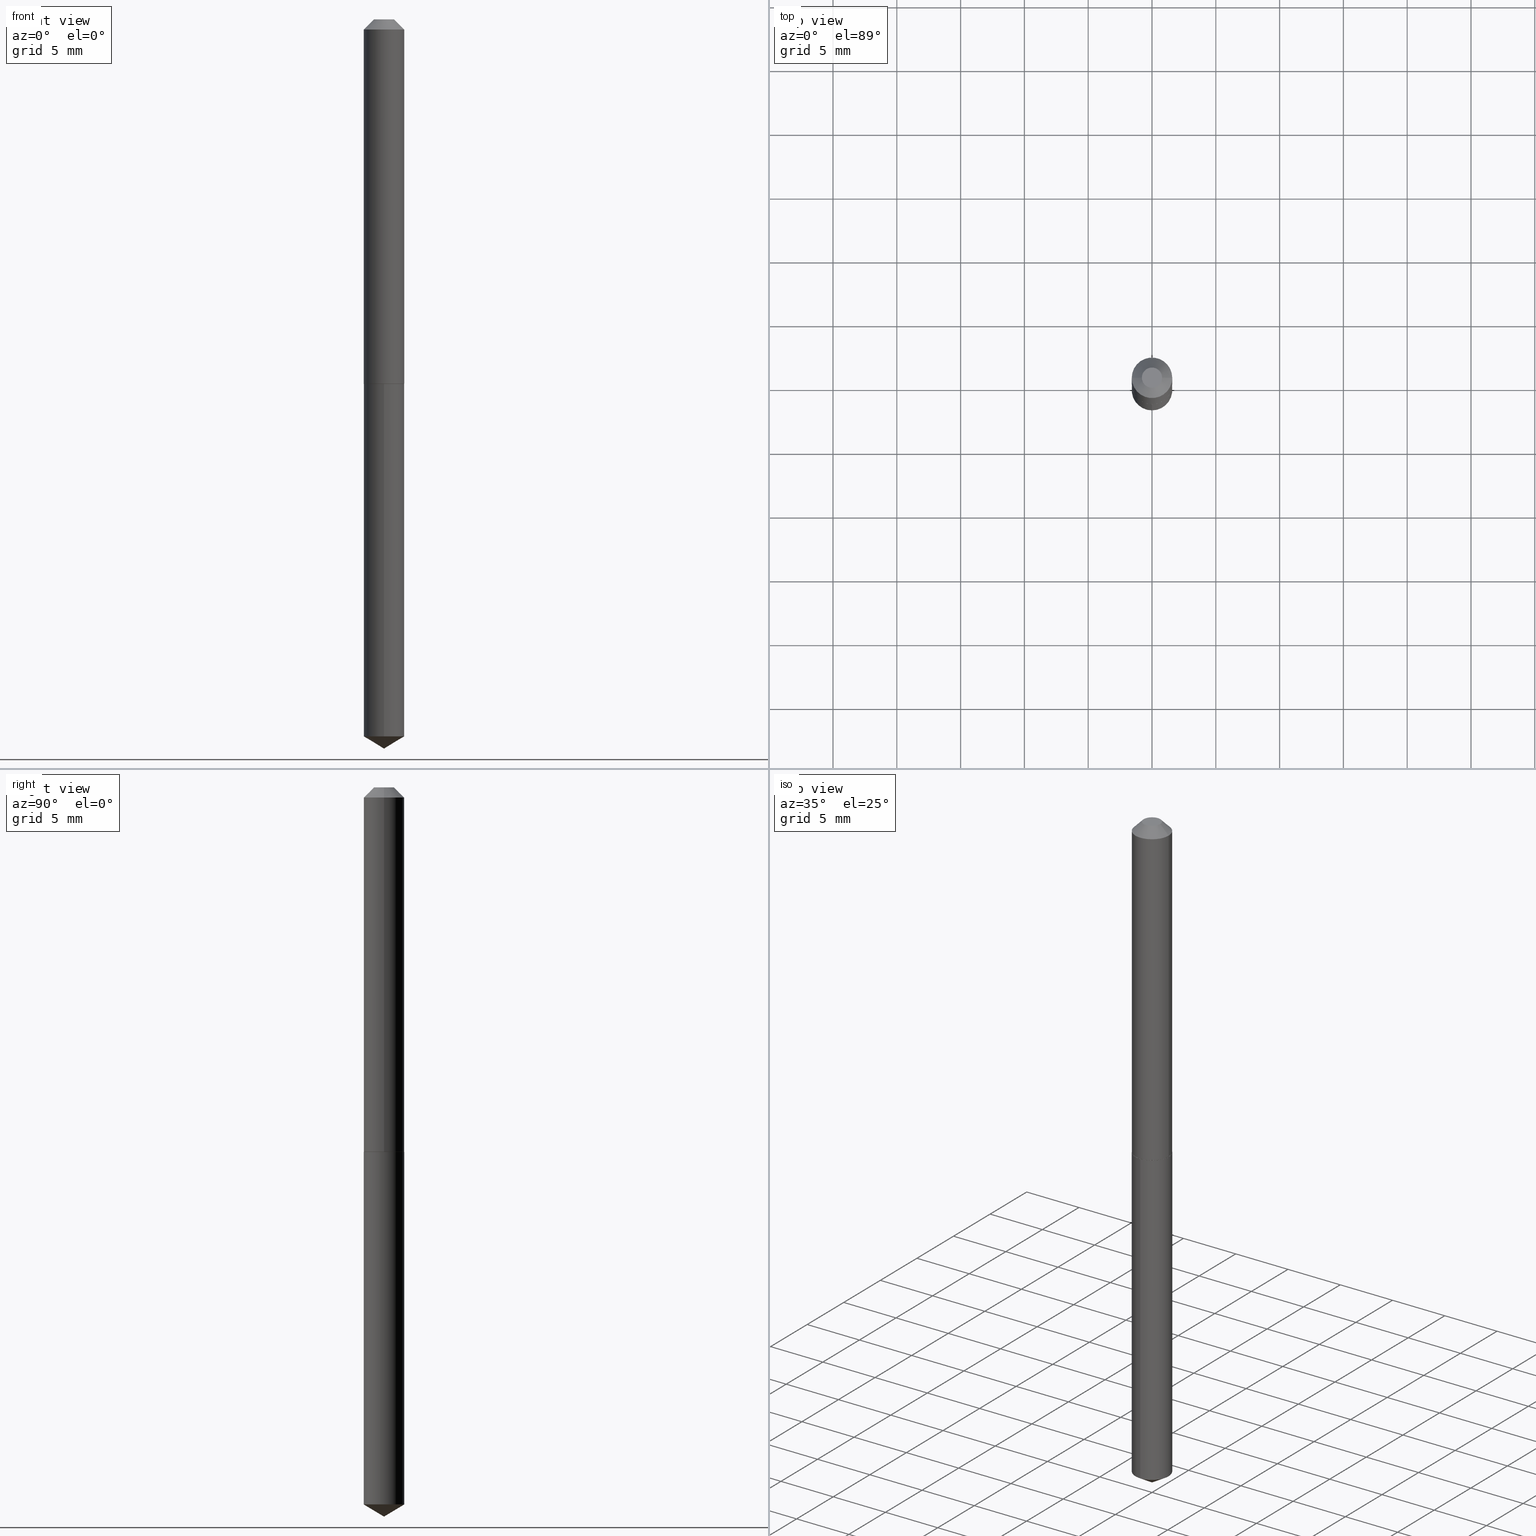
[diagram: canonical four-view strip — front | top / right | iso, engineering-drawing reading convention]
A machine part, canonical four-view strip (front | top / right | iso — engineering-drawing reading convention). The complete STEP part file that produces these views, byte-faithful:
ISO-10303-21;
HEADER;
FILE_DESCRIPTION (( 'STEP AP203' ),
    '1' );
FILE_NAME ('57133.STEP',
    '2024-04-22T22:41:10',
    ( '' ),
    ( '' ),
    'SwSTEP 2.0',
    'SolidWorks 2023',
    '' );
FILE_SCHEMA (( 'CONFIG_CONTROL_DESIGN' ));
ENDSEC;

DATA;
#1 = DIRECTION ( 'NONE',  ( -2.445476234488650403E-29, 3.491470701089721199E-15, 1.000000000000000000 ) ) ;
#2 = EDGE_CURVE ( 'NONE', #144, #344, #35, .T. ) ;
#3 = CARTESIAN_POINT ( 'NONE',  ( 2.749929672555185870E-29, -3.926170765529116932E-15, -1.124500000000000055 ) ) ;
#4 = LINE ( 'NONE', #69, #354 ) ;
#5 = AXIS2_PLACEMENT_3D ( 'NONE', #275, #339, #337 ) ;
#6 = CC_DESIGN_APPROVAL ( #88, ( #387 ) ) ;
#7 = DIRECTION ( 'NONE',  ( -6.982962677686266711E-15, -1.000000000000000000, 3.468864327941578437E-15 ) ) ;
#8 = CALENDAR_DATE ( 2024, 22, 4 ) ;
#9 = DIRECTION ( 'NONE',  ( 1.000000000000000000, -6.982962677686265922E-15, 4.876176775795935793E-29 ) ) ;
#10 = COORDINATED_UNIVERSAL_TIME_OFFSET ( 5, 0, .BEHIND. ) ;
#11 = VECTOR ( 'NONE', #361, 39.37007874015748143 ) ;
#12 = ORIENTED_EDGE ( 'NONE', *, *, #268, .F. ) ;
#13 = PERSON_AND_ORGANIZATION_ROLE ( 'classification_officer' ) ;
#14 = ORIENTED_EDGE ( 'NONE', *, *, #235, .F. ) ;
#15 = COORDINATED_UNIVERSAL_TIME_OFFSET ( 5, 0, .BEHIND. ) ;
#16 = EDGE_CURVE ( 'NONE', #180, #338, #169, .T. ) ;
#17 = ORIENTED_EDGE ( 'NONE', *, *, #360, .T. ) ;
#18 = ORGANIZATION ( 'UNSPECIFIED', 'UNSPECIFIED', '' ) ;
#19 = CARTESIAN_POINT ( 'NONE',  ( 2.749929672555185870E-29, -3.926170765529116932E-15, -1.124500000000000055 ) ) ;
#20 = ORIENTED_EDGE ( 'NONE', *, *, #228, .T. ) ;
#21 = DIRECTION ( 'NONE',  ( 1.000000000000000000, -6.982962677686265133E-15, 0.000000000000000000 ) ) ;
#22 = CALENDAR_DATE ( 2024, 22, 4 ) ;
#23 = DIRECTION ( 'NONE',  ( -1.000000000000000000, 6.982962677686265922E-15, -4.876176775795935793E-29 ) ) ;
#24 = ADVANCED_FACE ( 'NONE', ( #247 ), #253, .T. ) ;
#25 = AXIS2_PLACEMENT_3D ( 'NONE', #137, #46, #321 ) ;
#26 = DIRECTION ( 'NONE',  ( -2.445476234488650403E-29, 3.491470701089721199E-15, 1.000000000000000000 ) ) ;
#27 = DIRECTION ( 'NONE',  ( 6.090539988449787113E-15, 0.8571673007021152202, 0.5150380749100493816 ) ) ;
#28 = VERTEX_POINT ( 'NONE', #161 ) ;
#29 = DIRECTION ( 'NONE',  ( -2.445468806185136597E-29, 3.491481338843145583E-15, 1.000000000000000000 ) ) ;
#30 = CARTESIAN_POINT ( 'NONE',  ( 2.751152406958278671E-29, -3.927916506198539224E-15, -1.125000000000000000 ) ) ;
#31 = AXIS2_PLACEMENT_3D ( 'NONE', #349, #283, #281 ) ;
#32 = CYLINDRICAL_SURFACE ( 'NONE', #336, 0.06250000000000006939 ) ;
#33 = CARTESIAN_POINT ( 'NONE',  ( 7.642090019328602662E-31, -1.091087918388490267E-16, -0.03125000000000020817 ) ) ;
#34 = CARTESIAN_POINT ( 'NONE',  ( 2.751152406958279232E-29, -3.927916506198539224E-15, -1.125000000000000222 ) ) ;
#35 = LINE ( 'NONE', #280, #382 ) ;
#36 = APPROVAL ( #101, 'UNSPECIFIED' ) ;
#37 = FACE_OUTER_BOUND ( 'NONE', #262, .T. ) ;
#38 = CARTESIAN_POINT ( 'NONE',  ( 0.06250000000000013878, -4.362605932884509390E-15, -1.124500000000000055 ) ) ;
#39 = AXIS2_PLACEMENT_3D ( 'NONE', #63, #218, #214 ) ;
#40 = PERSON_AND_ORGANIZATION ( #47, #18 ) ;
#41 = PLANE ( 'NONE',  #25 ) ;
#42 = CC_DESIGN_DATE_AND_TIME_ASSIGNMENT ( #324, #53, ( #387 ) ) ;
#43 =( CONVERSION_BASED_UNIT ( 'INCH', #257 ) LENGTH_UNIT ( ) NAMED_UNIT ( #149 ) );
#44 = AXIS2_PLACEMENT_3D ( 'NONE', #364, #249, #212 ) ;
#45 = ORIENTED_EDGE ( 'NONE', *, *, #183, .F. ) ;
#46 = DIRECTION ( 'NONE',  ( 2.445476234488649843E-29, -3.491470701089721199E-15, -1.000000000000000000 ) ) ;
#47 = PERSON ( 'UNSPECIFIED', 'UNSPECIFIED', 'UNSPECIFIED', ('UNSPECIFIED'), ('UNSPECIFIED'), ('UNSPECIFIED') ) ;
#48 = PRODUCT_DEFINITION ( 'UNKNOWN', '', #152, #231 ) ;
#49 = ORIENTED_EDGE ( 'NONE', *, *, #118, .T. ) ;
#50 = VERTEX_POINT ( 'NONE', #276 ) ;
#51 = ORIENTED_EDGE ( 'NONE', *, *, #95, .T. ) ;
#52 = CONICAL_SURFACE ( 'NONE', #5, 0.06250000000000000000, 0.7853981633974449483 ) ;
#53 = DATE_TIME_ROLE ( 'classification_date' ) ;
#54 = ORIENTED_EDGE ( 'NONE', *, *, #186, .F. ) ;
#55 = EDGE_CURVE ( 'NONE', #141, #82, #390, .T. ) ;
#56 = DATE_AND_TIME ( #22, #65 ) ;
#57 = CARTESIAN_POINT ( 'NONE',  ( 4.440892098501167517E-16, 0.06249999999999229089, -2.212446211310778121 ) ) ;
#58 = AXIS2_PLACEMENT_3D ( 'NONE', #98, #243, #273 ) ;
#59 = VECTOR ( 'NONE', #123, 39.37007874015748143 ) ;
#60 = PRODUCT_RELATED_PRODUCT_CATEGORY ( 'detail', '', ( #122 ) ) ;
#61 = DIRECTION ( 'NONE',  ( 1.000000000000000000, -6.982962677686266711E-15, 0.000000000000000000 ) ) ;
#62 = CARTESIAN_POINT ( 'NONE',  ( 0.000000000000000000, 0.000000000000000000, 0.000000000000000000 ) ) ;
#63 = CARTESIAN_POINT ( 'NONE',  ( 2.751152406958278671E-29, -3.927916506198539224E-15, -1.125000000000000000 ) ) ;
#64 = CC_DESIGN_APPROVAL ( #131, ( #48 ) ) ;
#65 = LOCAL_TIME ( 18, 41, 10.00000000000000000, #86 ) ;
#66 = CLOSED_SHELL ( 'NONE', ( #24, #246, #330, #109, #125, #207, #307, #200 ) ) ;
#67 = DIRECTION ( 'NONE',  ( -6.982962677686265922E-15, -1.000000000000000000, 4.370956789862821150E-15 ) ) ;
#68 = CARTESIAN_POINT ( 'NONE',  ( -0.06250000000000006939, 4.440892098500631092E-16, -3.074334431409319267E-30 ) ) ;
#69 = CARTESIAN_POINT ( 'NONE',  ( 0.06250000000000000000, -5.378899166995697247E-16, -0.03125000000000020817 ) ) ;
#70 = CARTESIAN_POINT ( 'NONE',  ( -0.06250000000000000000, 3.273263755165426674E-16, -0.03125000000000020817 ) ) ;
#71 = EDGE_LOOP ( 'NONE', ( #197, #112, #314, #111 ) ) ;
#72 = EDGE_CURVE ( 'NONE', #115, #28, #328, .T. ) ;
#73 = COORDINATED_UNIVERSAL_TIME_OFFSET ( 5, 0, .BEHIND. ) ;
#74 = APPROVAL_DATE_TIME ( #134, #36 ) ;
#75 = ORIENTED_EDGE ( 'NONE', *, *, #173, .F. ) ;
#76 = CONICAL_SURFACE ( 'NONE', #120, 65.52281426576873002, 1.029744258676656532 ) ;
#77 = AXIS2_PLACEMENT_3D ( 'NONE', #366, #220, #9 ) ;
#78 = APPROVAL_ROLE ( '' ) ;
#79 = ORIENTED_EDGE ( 'NONE', *, *, #118, .F. ) ;
#80 = VERTEX_POINT ( 'NONE', #93 ) ;
#81 = PERSON_AND_ORGANIZATION ( #47, #18 ) ;
#82 = VERTEX_POINT ( 'NONE', #167 ) ;
#83 = VECTOR ( 'NONE', #181, 39.37007874015748143 ) ;
#84 = CARTESIAN_POINT ( 'NONE',  ( 7.642090019328602662E-31, -1.091087918388490267E-16, -0.03125000000000020817 ) ) ;
#85 = APPLICATION_CONTEXT ( 'configuration controlled 3d designs of mechanical parts and assemblies' ) ;
#86 = COORDINATED_UNIVERSAL_TIME_OFFSET ( 5, 0, .BEHIND. ) ;
#87 = CARTESIAN_POINT ( 'NONE',  ( 5.410476273003508359E-29, -7.724703092001141037E-15, -2.212446211310777677 ) ) ;
#88 = APPROVAL ( #237, 'UNSPECIFIED' ) ;
#89 = CARTESIAN_POINT ( 'NONE',  ( 5.502304813916557343E-29, -7.855833012397078448E-15, -2.250000000000000000 ) ) ;
#90 = FACE_OUTER_BOUND ( 'NONE', #138, .T. ) ;
#91 = CARTESIAN_POINT ( 'NONE',  ( -0.03125000000000000000, 2.727719795971193003E-16, 3.061616997851215240E-19 ) ) ;
#92 = CARTESIAN_POINT ( 'NONE',  ( -9.077627873824398313E-28, 1.296036553759306952E-13, 37.12007874015748143 ) ) ;
#93 = CARTESIAN_POINT ( 'NONE',  ( -4.364351673553376324E-16, -0.06250000000000772993, -2.212446211310777233 ) ) ;
#94 = DIRECTION ( 'NONE',  ( 1.000000000000000000, -6.982962677686266711E-15, 0.000000000000000000 ) ) ;
#95 = EDGE_CURVE ( 'NONE', #28, #50, #4, .T. ) ;
#96 = LOCAL_TIME ( 18, 41, 10.00000000000000000, #105 ) ;
#97 = DIRECTION ( 'NONE',  ( -2.445468806185136597E-29, 3.491481338843145583E-15, 1.000000000000000000 ) ) ;
#98 = CARTESIAN_POINT ( 'NONE',  ( -7.487088864773312091E-48, 1.068957861474242724E-33, 3.061616997868381053E-19 ) ) ;
#99 = FACE_OUTER_BOUND ( 'NONE', #261, .T. ) ;
#100 = DIRECTION ( 'NONE',  ( -0.7071067811864388819, 7.493145998869961307E-15, 0.7071067811866561525 ) ) ;
#101 = APPROVAL_STATUS ( 'not_yet_approved' ) ;
#102 = AXIS2_PLACEMENT_3D ( 'NONE', #30, #157, #128 ) ;
#103 = APPROVAL_DATE_TIME ( #168, #131 ) ;
#104 = ORIENTED_EDGE ( 'NONE', *, *, #251, .F. ) ;
#105 = COORDINATED_UNIVERSAL_TIME_OFFSET ( 5, 0, .BEHIND. ) ;
#106 = ORIENTED_EDGE ( 'NONE', *, *, #146, .F. ) ;
#107 =( NAMED_UNIT ( * ) SI_UNIT ( $, .STERADIAN. ) SOLID_ANGLE_UNIT ( ) );
#108 = MANIFOLD_SOLID_BREP ( 'Body-Move/Copy2[1]', #153 ) ;
#109 = ADVANCED_FACE ( 'NONE', ( #132 ), #250, .F. ) ;
#110 = AXIS2_PLACEMENT_3D ( 'NONE', #34, #334, #165 ) ;
#111 = ORIENTED_EDGE ( 'NONE', *, *, #325, .F. ) ;
#112 = ORIENTED_EDGE ( 'NONE', *, *, #183, .T. ) ;
#113 = DIRECTION ( 'NONE',  ( -2.445476234488650403E-29, 3.491470701089721199E-15, 1.000000000000000000 ) ) ;
#114 = CC_DESIGN_DATE_AND_TIME_ASSIGNMENT ( #133, #367, ( #48 ) ) ;
#115 = VERTEX_POINT ( 'NONE', #91 ) ;
#116 = PLANE ( 'NONE',  #172 ) ;
#117 = ORIENTED_EDGE ( 'NONE', *, *, #376, .T. ) ;
#118 = EDGE_CURVE ( 'NONE', #82, #338, #277, .T. ) ;
#119 = ORIENTED_EDGE ( 'NONE', *, *, #346, .T. ) ;
#120 = AXIS2_PLACEMENT_3D ( 'NONE', #92, #1, #7 ) ;
#121 = DIRECTION ( 'NONE',  ( 1.000000000000000000, -6.982962677686262766E-15, 0.000000000000000000 ) ) ;
#122 = PRODUCT ( '57133', '57133', '', ( #194 ) ) ;
#123 = DIRECTION ( 'NONE',  ( -2.445476234488650123E-29, 3.491470701089721199E-15, 1.000000000000000000 ) ) ;
#124 = CARTESIAN_POINT ( 'NONE',  ( -0.06250000000000013878, -3.482081555679053527E-15, -1.124500000000000055 ) ) ;
#125 = ADVANCED_FACE ( 'NONE', ( #355 ), #383, .T. ) ;
#126 = LINE ( 'NONE', #68, #252 ) ;
#127 = EDGE_LOOP ( 'NONE', ( #377, #238, #373, #288 ) ) ;
#128 = DIRECTION ( 'NONE',  ( -6.982962677686265922E-15, -1.000000000000000000, 4.370956789862821150E-15 ) ) ;
#129 = CIRCLE ( 'NONE', #39, 0.06250000000000000000 ) ;
#130 = CARTESIAN_POINT ( 'NONE',  ( 4.440892098501169490E-16, 0.06249999999999607952, -1.125000000000000222 ) ) ;
#131 = APPROVAL ( #315, 'UNSPECIFIED' ) ;
#132 = FACE_OUTER_BOUND ( 'NONE', #372, .T. ) ;
#133 = DATE_AND_TIME ( #140, #319 ) ;
#134 = DATE_AND_TIME ( #170, #313 ) ;
#135 = AXIS2_PLACEMENT_3D ( 'NONE', #33, #163, #340 ) ;
#136 = EDGE_LOOP ( 'NONE', ( #230, #51, #174, #104 ) ) ;
#137 = CARTESIAN_POINT ( 'NONE',  ( 2.751152406958278671E-29, -3.927916506198539224E-15, -1.125000000000000000 ) ) ;
#138 = EDGE_LOOP ( 'NONE', ( #290, #229, #147, #369 ) ) ;
#139 = CC_DESIGN_PERSON_AND_ORGANIZATION_ASSIGNMENT ( #371, #177, ( #48 ) ) ;
#140 = CALENDAR_DATE ( 2024, 22, 4 ) ;
#141 = VERTEX_POINT ( 'NONE', #203 ) ;
#142 = APPLICATION_PROTOCOL_DEFINITION ( 'international standard', 'config_control_design', 1994, #85 ) ;
#143 = AXIS2_PLACEMENT_3D ( 'NONE', #3, #29, #121 ) ;
#144 = VERTEX_POINT ( 'NONE', #57 ) ;
#145 = CARTESIAN_POINT ( 'NONE',  ( 5.502321674158733231E-29, -7.855809077451873092E-15, -2.250000000000000000 ) ) ;
#146 = EDGE_CURVE ( 'NONE', #202, #80, #298, .T. ) ;
#147 = ORIENTED_EDGE ( 'NONE', *, *, #274, .F. ) ;
#148 = CYLINDRICAL_SURFACE ( 'NONE', #343, 0.06250000000000000000 ) ;
#149 = DIMENSIONAL_EXPONENTS ( 1.000000000000000000, 0.000000000000000000, 0.000000000000000000, 0.000000000000000000, 0.000000000000000000, 0.000000000000000000, 0.000000000000000000 ) ;
#150 = ADVANCED_BREP_SHAPE_REPRESENTATION ( '57133', ( #108, #236, #31 ), #179 ) ;
#151 = CARTESIAN_POINT ( 'NONE',  ( -0.06200000000000011752, -3.484730782853164728E-15, -1.125000000000000222 ) ) ;
#152 = PRODUCT_DEFINITION_FORMATION_WITH_SPECIFIED_SOURCE ( 'ANY', '', #122, .NOT_KNOWN. ) ;
#153 = CLOSED_SHELL ( 'NONE', ( #301, #370, #264, #196, #388 ) ) ;
#154 = CARTESIAN_POINT ( 'NONE',  ( 2.751152406958278671E-29, -3.927916506198539224E-15, -1.125000000000000000 ) ) ;
#155 = FACE_OUTER_BOUND ( 'NONE', #201, .T. ) ;
#156 = AXIS2_PLACEMENT_3D ( 'NONE', #160, #192, #94 ) ;
#157 = DIRECTION ( 'NONE',  ( -2.445476234488650403E-29, 3.491470701089721199E-15, 1.000000000000000000 ) ) ;
#158 = DIRECTION ( 'NONE',  ( -2.445476234488650123E-29, 3.491470701089721199E-15, 1.000000000000000000 ) ) ;
#159 = EDGE_CURVE ( 'NONE', #80, #144, #234, .T. ) ;
#160 = CARTESIAN_POINT ( 'NONE',  ( 7.642090019328602662E-31, -1.091087918388490267E-16, -0.03125000000000020817 ) ) ;
#161 = CARTESIAN_POINT ( 'NONE',  ( 0.03125000000000000000, -3.761402395649650430E-16, 3.061616997889155578E-19 ) ) ;
#162 = DIRECTION ( 'NONE',  ( 1.000000000000000000, -6.982962677686266711E-15, 4.876176775795935793E-29 ) ) ;
#163 = DIRECTION ( 'NONE',  ( 2.445468806185136597E-29, -3.491481338843145583E-15, -1.000000000000000000 ) ) ;
#164 = CC_DESIGN_PERSON_AND_ORGANIZATION_ASSIGNMENT ( #316, #171, ( #152 ) ) ;
#165 = DIRECTION ( 'NONE',  ( 1.000000000000000000, -6.982962677686265133E-15, 0.000000000000000000 ) ) ;
#166 = VECTOR ( 'NONE', #27, 39.37007874015748854 ) ;
#167 = CARTESIAN_POINT ( 'NONE',  ( 0.06250000000000013878, -4.362605932884509390E-15, -1.124500000000000055 ) ) ;
#168 = DATE_AND_TIME ( #8, #352 ) ;
#169 = LINE ( 'NONE', #124, #318 ) ;
#170 = CALENDAR_DATE ( 2024, 22, 4 ) ;
#171 = PERSON_AND_ORGANIZATION_ROLE ( 'design_supplier' ) ;
#172 = AXIS2_PLACEMENT_3D ( 'NONE', #353, #205, #23 ) ;
#173 = EDGE_CURVE ( 'NONE', #144, #80, #227, .T. ) ;
#174 = ORIENTED_EDGE ( 'NONE', *, *, #268, .T. ) ;
#175 = SECURITY_CLASSIFICATION_LEVEL ( 'unclassified' ) ;
#176 = ORIENTED_EDGE ( 'NONE', *, *, #146, .T. ) ;
#177 = PERSON_AND_ORGANIZATION_ROLE ( 'creator' ) ;
#178 = EDGE_LOOP ( 'NONE', ( #322, #117 ) ) ;
#179 =( GEOMETRIC_REPRESENTATION_CONTEXT ( 3 ) GLOBAL_UNCERTAINTY_ASSIGNED_CONTEXT ( ( #378 ) ) GLOBAL_UNIT_ASSIGNED_CONTEXT ( ( #43, #289, #107 ) ) REPRESENTATION_CONTEXT ( 'NONE', 'WORKASPACE' ) );
#180 = VERTEX_POINT ( 'NONE', #151 ) ;
#181 = DIRECTION ( 'NONE',  ( -5.985567269335949957E-15, -0.8571673007021116675, 0.5150380749100553768 ) ) ;
#182 = CARTESIAN_POINT ( 'NONE',  ( 5.410476273003508359E-29, -7.724703092001141037E-15, -2.212446211310777677 ) ) ;
#183 = EDGE_CURVE ( 'NONE', #180, #141, #299, .T. ) ;
#184 = LINE ( 'NONE', #145, #166 ) ;
#185 = CARTESIAN_POINT ( 'NONE',  ( 0.06250000000000006939, -4.364351673553921624E-16, 3.047610484872463374E-30 ) ) ;
#186 = EDGE_CURVE ( 'NONE', #292, #50, #357, .T. ) ;
#187 = AXIS2_PLACEMENT_3D ( 'NONE', #84, #295, #61 ) ;
#188 = DIRECTION ( 'NONE',  ( 1.000000000000000000, -6.982962677686262766E-15, 0.000000000000000000 ) ) ;
#189 = AXIS2_PLACEMENT_3D ( 'NONE', #335, #215, #293 ) ;
#190 = FACE_OUTER_BOUND ( 'NONE', #351, .T. ) ;
#191 = EDGE_CURVE ( 'NONE', #202, #144, #184, .T. ) ;
#192 = DIRECTION ( 'NONE',  ( -2.445468806185136597E-29, 3.491481338843145583E-15, 1.000000000000000000 ) ) ;
#193 = DIRECTION ( 'NONE',  ( 1.000000000000000000, -6.982962677686266711E-15, 4.876242311950517246E-29 ) ) ;
#194 = MECHANICAL_CONTEXT ( 'NONE', #85, 'mechanical' ) ;
#195 = PERSON_AND_ORGANIZATION_ROLE ( 'creator' ) ;
#196 = ADVANCED_FACE ( 'NONE', ( #379 ), #148, .T. ) ;
#197 = ORIENTED_EDGE ( 'NONE', *, *, #16, .F. ) ;
#198 = VECTOR ( 'NONE', #282, 39.37007874015748143 ) ;
#199 = ORIENTED_EDGE ( 'NONE', *, *, #55, .F. ) ;
#200 = ADVANCED_FACE ( 'NONE', ( #381 ), #116, .F. ) ;
#201 = EDGE_LOOP ( 'NONE', ( #49, #119, #12, #14 ) ) ;
#202 = VERTEX_POINT ( 'NONE', #265 ) ;
#203 = CARTESIAN_POINT ( 'NONE',  ( 0.06200000000000011752, -4.360860192215088675E-15, -1.125000000000000222 ) ) ;
#204 = AXIS2_PLACEMENT_3D ( 'NONE', #365, #333, #193 ) ;
#205 = DIRECTION ( 'NONE',  ( 2.438088387897960049E-29, -3.491481338843145188E-15, -1.000000000000000000 ) ) ;
#206 = EDGE_LOOP ( 'NONE', ( #20, #224, #79, #199 ) ) ;
#207 = ADVANCED_FACE ( 'NONE', ( #99 ), #32, .T. ) ;
#208 = CARTESIAN_POINT ( 'NONE',  ( 2.751152406958279232E-29, -3.927916506198539224E-15, -1.125000000000000222 ) ) ;
#209 = CONICAL_SURFACE ( 'NONE', #143, 0.06250000000000013878, 0.7853981633972946241 ) ;
#210 = CIRCLE ( 'NONE', #260, 0.06250000000000000000 ) ;
#211 = DIRECTION ( 'NONE',  ( -6.982962677686265922E-15, -1.000000000000000000, 4.370956789862821150E-15 ) ) ;
#212 = DIRECTION ( 'NONE',  ( -6.982962677686266711E-15, -1.000000000000000000, 3.468864327941578437E-15 ) ) ;
#213 = ORIENTED_EDGE ( 'NONE', *, *, #95, .F. ) ;
#214 = DIRECTION ( 'NONE',  ( -6.982962677686265922E-15, -1.000000000000000000, 4.370956789862821150E-15 ) ) ;
#215 = DIRECTION ( 'NONE',  ( -2.445468806185136597E-29, 3.491481338843145583E-15, 1.000000000000000000 ) ) ;
#216 = CIRCLE ( 'NONE', #110, 0.06200000000000011752 ) ;
#217 = CARTESIAN_POINT ( 'NONE',  ( -0.06250000000000000000, -1.573550568833919217E-15, -0.03125000000000020817 ) ) ;
#218 = DIRECTION ( 'NONE',  ( -2.445476234488650403E-29, 3.491470701089721199E-15, 1.000000000000000000 ) ) ;
#219 = LINE ( 'NONE', #185, #266 ) ;
#220 = DIRECTION ( 'NONE',  ( -2.438088387897960049E-29, 3.491481338843145188E-15, 1.000000000000000000 ) ) ;
#221 = APPROVAL_ROLE ( '' ) ;
#222 = APPROVAL_PERSON_ORGANIZATION ( #81, #88, #329 ) ;
#223 = PERSON_AND_ORGANIZATION ( #47, #18 ) ;
#224 = ORIENTED_EDGE ( 'NONE', *, *, #16, .T. ) ;
#225 = ORIENTED_EDGE ( 'NONE', *, *, #346, .F. ) ;
#226 = PERSON_AND_ORGANIZATION ( #47, #18 ) ;
#227 = CIRCLE ( 'NONE', #284, 0.06250000000000000000 ) ;
#228 = EDGE_CURVE ( 'NONE', #141, #180, #216, .T. ) ;
#229 = ORIENTED_EDGE ( 'NONE', *, *, #2, .T. ) ;
#230 = ORIENTED_EDGE ( 'NONE', *, *, #376, .F. ) ;
#231 = DESIGN_CONTEXT ( 'detailed design', #296, 'design' ) ;
#232 = APPROVAL_DATE_TIME ( #56, #88 ) ;
#233 = VERTEX_POINT ( 'NONE', #303 ) ;
#234 = CIRCLE ( 'NONE', #374, 0.06250000000000000000 ) ;
#235 = EDGE_CURVE ( 'NONE', #82, #50, #219, .T. ) ;
#236 = MANIFOLD_SOLID_BREP ( 'Body-Move/Copy2[2]', #66 ) ;
#237 = APPROVAL_STATUS ( 'not_yet_approved' ) ;
#238 = ORIENTED_EDGE ( 'NONE', *, *, #173, .T. ) ;
#239 = DIRECTION ( 'NONE',  ( 1.000000000000000000, -6.982962677686262766E-15, 0.000000000000000000 ) ) ;
#240 = CC_DESIGN_PERSON_AND_ORGANIZATION_ASSIGNMENT ( #285, #13, ( #387 ) ) ;
#241 = FACE_OUTER_BOUND ( 'NONE', #206, .T. ) ;
#242 = DIRECTION ( 'NONE',  ( 1.000000000000000000, -6.982962677686266711E-15, 4.876176775795935793E-29 ) ) ;
#243 = DIRECTION ( 'NONE',  ( -2.445468806185136597E-29, 3.491481338843145583E-15, 1.000000000000000000 ) ) ;
#244 = CARTESIAN_POINT ( 'NONE',  ( 2.751152406958278671E-29, -3.927916506198539224E-15, -1.125000000000000000 ) ) ;
#245 = LINE ( 'NONE', #310, #59 ) ;
#246 = ADVANCED_FACE ( 'NONE', ( #155 ), #342, .T. ) ;
#247 = FACE_OUTER_BOUND ( 'NONE', #136, .T. ) ;
#248 = PRODUCT_DEFINITION_SHAPE ( 'NONE', 'NONE',  #48 ) ;
#249 = DIRECTION ( 'NONE',  ( -2.445476234488650403E-29, 3.491470701089721199E-15, 1.000000000000000000 ) ) ;
#250 = PLANE ( 'NONE',  #77 ) ;
#251 = EDGE_CURVE ( 'NONE', #115, #292, #308, .T. ) ;
#252 = VECTOR ( 'NONE', #362, 39.37007874015748143 ) ;
#253 = CONICAL_SURFACE ( 'NONE', #135, 0.06250000000000000000, 0.7853981633974449483 ) ;
#254 = ORIENTED_EDGE ( 'NONE', *, *, #191, .F. ) ;
#255 = PERSON_AND_ORGANIZATION ( #47, #18 ) ;
#256 = EDGE_LOOP ( 'NONE', ( #213, #380, #287, #358 ) ) ;
#257 = LENGTH_MEASURE_WITH_UNIT ( LENGTH_MEASURE( 0.02539999999999999897 ), #345 );
#258 = ORIENTED_EDGE ( 'NONE', *, *, #274, .T. ) ;
#259 = APPLICATION_PROTOCOL_DEFINITION ( 'international standard', 'config_control_design', 1994, #296 ) ;
#260 = AXIS2_PLACEMENT_3D ( 'NONE', #244, #359, #67 ) ;
#261 = EDGE_LOOP ( 'NONE', ( #225, #309, #297, #54 ) ) ;
#262 = EDGE_LOOP ( 'NONE', ( #106, #323, #347 ) ) ;
#263 = DIRECTION ( 'NONE',  ( -6.982962677686265922E-15, -1.000000000000000000, 4.370956789862821150E-15 ) ) ;
#264 = ADVANCED_FACE ( 'NONE', ( #190 ), #76, .T. ) ;
#265 = CARTESIAN_POINT ( 'NONE',  ( 5.502321527599463758E-29, -7.855809077451871514E-15, -2.250000000000000000 ) ) ;
#266 = VECTOR ( 'NONE', #279, 39.37007874015748143 ) ;
#267 = CALENDAR_DATE ( 2024, 22, 4 ) ;
#268 = EDGE_CURVE ( 'NONE', #50, #292, #375, .T. ) ;
#269 = DIRECTION ( 'NONE',  ( -2.445468806185136597E-29, 3.491481338843145583E-15, 1.000000000000000000 ) ) ;
#270 = AXIS2_PLACEMENT_3D ( 'NONE', #306, #97, #162 ) ;
#271 = FACE_OUTER_BOUND ( 'NONE', #256, .T. ) ;
#272 = CARTESIAN_POINT ( 'NONE',  ( -0.06250000000000013878, -3.482081555679053527E-15, -1.124500000000000055 ) ) ;
#273 = DIRECTION ( 'NONE',  ( 1.000000000000000000, -6.982962677686266711E-15, 4.876242311950517246E-29 ) ) ;
#274 = EDGE_CURVE ( 'NONE', #233, #344, #129, .T. ) ;
#275 = CARTESIAN_POINT ( 'NONE',  ( 7.642090019328602662E-31, -1.091087918388490267E-16, -0.03125000000000020817 ) ) ;
#276 = CARTESIAN_POINT ( 'NONE',  ( 0.06250000000000000000, -5.455439591942406714E-16, -0.03125000000000020817 ) ) ;
#277 = CIRCLE ( 'NONE', #189, 0.06250000000000013878 ) ;
#278 = AXIS2_PLACEMENT_3D ( 'NONE', #19, #302, #239 ) ;
#279 = DIRECTION ( 'NONE',  ( -2.445468806185136877E-29, 3.491481338843145188E-15, 1.000000000000000000 ) ) ;
#280 = CARTESIAN_POINT ( 'NONE',  ( 4.440892098500901277E-16, 0.06249999999999607259, -1.125000000000000222 ) ) ;
#281 = DIRECTION ( 'NONE',  ( 1.000000000000000000, 0.000000000000000000, 0.000000000000000000 ) ) ;
#282 = DIRECTION ( 'NONE',  ( 0.7071067811864388819, -2.468850131081119129E-15, 0.7071067811866561525 ) ) ;
#283 = DIRECTION ( 'NONE',  ( 0.000000000000000000, 0.000000000000000000, 1.000000000000000000 ) ) ;
#284 = AXIS2_PLACEMENT_3D ( 'NONE', #182, #356, #211 ) ;
#285 = PERSON_AND_ORGANIZATION ( #47, #18 ) ;
#286 = CC_DESIGN_SECURITY_CLASSIFICATION ( #387, ( #152 ) ) ;
#287 = ORIENTED_EDGE ( 'NONE', *, *, #251, .T. ) ;
#288 = ORIENTED_EDGE ( 'NONE', *, *, #360, .F. ) ;
#289 =( NAMED_UNIT ( * ) PLANE_ANGLE_UNIT ( ) SI_UNIT ( $, .RADIAN. ) );
#290 = ORIENTED_EDGE ( 'NONE', *, *, #159, .T. ) ;
#291 = SHAPE_DEFINITION_REPRESENTATION ( #248, #150 ) ;
#292 = VERTEX_POINT ( 'NONE', #217 ) ;
#293 = DIRECTION ( 'NONE',  ( 1.000000000000000000, -6.982962677686262766E-15, 0.000000000000000000 ) ) ;
#294 = CC_DESIGN_PERSON_AND_ORGANIZATION_ASSIGNMENT ( #255, #195, ( #152 ) ) ;
#295 = DIRECTION ( 'NONE',  ( -2.445468806185136597E-29, 3.491481338843145583E-15, 1.000000000000000000 ) ) ;
#296 = APPLICATION_CONTEXT ( 'configuration controlled 3d designs of mechanical parts and assemblies' ) ;
#297 = ORIENTED_EDGE ( 'NONE', *, *, #235, .T. ) ;
#298 = LINE ( 'NONE', #89, #83 ) ;
#299 = CIRCLE ( 'NONE', #305, 0.06200000000000011752 ) ;
#300 = CC_DESIGN_APPROVAL ( #36, ( #152 ) ) ;
#301 = ADVANCED_FACE ( 'NONE', ( #90 ), #304, .T. ) ;
#302 = DIRECTION ( 'NONE',  ( -2.445468806185136597E-29, 3.491481338843145583E-15, 1.000000000000000000 ) ) ;
#303 = CARTESIAN_POINT ( 'NONE',  ( -4.364351673553640593E-16, -0.06250000000000392741, -1.124999999999999778 ) ) ;
#304 = CYLINDRICAL_SURFACE ( 'NONE', #102, 0.06250000000000000000 ) ;
#305 = AXIS2_PLACEMENT_3D ( 'NONE', #208, #332, #21 ) ;
#306 = CARTESIAN_POINT ( 'NONE',  ( 0.000000000000000000, 0.000000000000000000, 0.000000000000000000 ) ) ;
#307 = ADVANCED_FACE ( 'NONE', ( #271 ), #52, .T. ) ;
#308 = LINE ( 'NONE', #70, #11 ) ;
#309 = ORIENTED_EDGE ( 'NONE', *, *, #325, .T. ) ;
#310 = CARTESIAN_POINT ( 'NONE',  ( -4.364351673553640593E-16, -0.06250000000000392741, -1.124999999999999778 ) ) ;
#311 = DIRECTION ( 'NONE',  ( 0.7071067811865451302, -7.319954787623248157E-15, -0.7071067811865499042 ) ) ;
#312 = CONICAL_SURFACE ( 'NONE', #44, 65.52281426576873002, 1.029744258676656532 ) ;
#313 = LOCAL_TIME ( 18, 41, 10.00000000000000000, #73 ) ;
#314 = ORIENTED_EDGE ( 'NONE', *, *, #55, .T. ) ;
#315 = APPROVAL_STATUS ( 'not_yet_approved' ) ;
#316 = PERSON_AND_ORGANIZATION ( #47, #18 ) ;
#317 = ORIENTED_EDGE ( 'NONE', *, *, #228, .F. ) ;
#318 = VECTOR ( 'NONE', #100, 39.37007874015748143 ) ;
#319 = LOCAL_TIME ( 18, 41, 10.00000000000000000, #15 ) ;
#320 = PERSON_AND_ORGANIZATION_ROLE ( 'design_owner' ) ;
#321 = DIRECTION ( 'NONE',  ( 6.982962677686265922E-15, 1.000000000000000000, -3.491470701089721199E-15 ) ) ;
#322 = ORIENTED_EDGE ( 'NONE', *, *, #72, .T. ) ;
#323 = ORIENTED_EDGE ( 'NONE', *, *, #191, .T. ) ;
#324 = DATE_AND_TIME ( #267, #96 ) ;
#325 = EDGE_CURVE ( 'NONE', #338, #82, #348, .T. ) ;
#326 = CIRCLE ( 'NONE', #204, 0.03125000000000000000 ) ;
#327 = DIRECTION ( 'NONE',  ( -6.982962677686265922E-15, -1.000000000000000000, 4.370956789862821150E-15 ) ) ;
#328 = CIRCLE ( 'NONE', #58, 0.03125000000000000000 ) ;
#329 = APPROVAL_ROLE ( '' ) ;
#330 = ADVANCED_FACE ( 'NONE', ( #241 ), #209, .T. ) ;
#331 = AXIS2_PLACEMENT_3D ( 'NONE', #389, #385, #188 ) ;
#332 = DIRECTION ( 'NONE',  ( -2.445468806185136597E-29, 3.491481338843145583E-15, 1.000000000000000000 ) ) ;
#333 = DIRECTION ( 'NONE',  ( -2.445468806185136597E-29, 3.491481338843145583E-15, 1.000000000000000000 ) ) ;
#334 = DIRECTION ( 'NONE',  ( -2.445468806185136597E-29, 3.491481338843145583E-15, 1.000000000000000000 ) ) ;
#335 = CARTESIAN_POINT ( 'NONE',  ( 2.749929672555185870E-29, -3.926170765529116932E-15, -1.124500000000000055 ) ) ;
#336 = AXIS2_PLACEMENT_3D ( 'NONE', #62, #269, #242 ) ;
#337 = DIRECTION ( 'NONE',  ( -1.000000000000000000, 6.982962677686266711E-15, 0.000000000000000000 ) ) ;
#338 = VERTEX_POINT ( 'NONE', #272 ) ;
#339 = DIRECTION ( 'NONE',  ( 2.445468806185136597E-29, -3.491481338843145583E-15, -1.000000000000000000 ) ) ;
#340 = DIRECTION ( 'NONE',  ( -1.000000000000000000, 6.982962677686266711E-15, 0.000000000000000000 ) ) ;
#341 = EDGE_CURVE ( 'NONE', #80, #233, #245, .T. ) ;
#342 = CYLINDRICAL_SURFACE ( 'NONE', #270, 0.06250000000000006939 ) ;
#343 = AXIS2_PLACEMENT_3D ( 'NONE', #154, #113, #263 ) ;
#344 = VERTEX_POINT ( 'NONE', #130 ) ;
#345 =( LENGTH_UNIT ( ) NAMED_UNIT ( * ) SI_UNIT ( $, .METRE. ) );
#346 = EDGE_CURVE ( 'NONE', #338, #292, #126, .T. ) ;
#347 = ORIENTED_EDGE ( 'NONE', *, *, #159, .F. ) ;
#348 = CIRCLE ( 'NONE', #331, 0.06250000000000013878 ) ;
#349 = CARTESIAN_POINT ( 'NONE',  ( 0.000000000000000000, 0.000000000000000000, 0.000000000000000000 ) ) ;
#350 = EDGE_LOOP ( 'NONE', ( #258, #17 ) ) ;
#351 = EDGE_LOOP ( 'NONE', ( #254, #176, #75 ) ) ;
#352 = LOCAL_TIME ( 18, 41, 10.00000000000000000, #10 ) ;
#353 = CARTESIAN_POINT ( 'NONE',  ( -3.743544432386656046E-48, 5.344789307371213619E-34, 1.530808498934190527E-19 ) ) ;
#354 = VECTOR ( 'NONE', #311, 39.37007874015748143 ) ;
#355 = FACE_OUTER_BOUND ( 'NONE', #71, .T. ) ;
#356 = DIRECTION ( 'NONE',  ( -2.445476234488650403E-29, 3.491470701089721199E-15, 1.000000000000000000 ) ) ;
#357 = CIRCLE ( 'NONE', #187, 0.06250000000000000000 ) ;
#358 = ORIENTED_EDGE ( 'NONE', *, *, #186, .T. ) ;
#359 = DIRECTION ( 'NONE',  ( -2.445476234488650403E-29, 3.491470701089721199E-15, 1.000000000000000000 ) ) ;
#360 = EDGE_CURVE ( 'NONE', #344, #233, #210, .T. ) ;
#361 = DIRECTION ( 'NONE',  ( -0.7071067811865451302, 2.468850131082231817E-15, -0.7071067811865499042 ) ) ;
#362 = DIRECTION ( 'NONE',  ( -2.445468806185136877E-29, 3.491481338843145188E-15, 1.000000000000000000 ) ) ;
#363 = APPROVAL_PERSON_ORGANIZATION ( #223, #36, #221 ) ;
#364 = CARTESIAN_POINT ( 'NONE',  ( -9.077627873824398313E-28, 1.296036553759306952E-13, 37.12007874015748143 ) ) ;
#365 = CARTESIAN_POINT ( 'NONE',  ( -7.487088864773312091E-48, 1.068957861474242724E-33, 3.061616997868381053E-19 ) ) ;
#366 = CARTESIAN_POINT ( 'NONE',  ( 1.020431305871317700E-29, -6.406407629482644051E-15, -1.125000000000000222 ) ) ;
#367 = DATE_TIME_ROLE ( 'creation_date' ) ;
#368 = FACE_OUTER_BOUND ( 'NONE', #350, .T. ) ;
#369 = ORIENTED_EDGE ( 'NONE', *, *, #341, .F. ) ;
#370 = ADVANCED_FACE ( 'NONE', ( #37 ), #312, .T. ) ;
#371 = PERSON_AND_ORGANIZATION ( #47, #18 ) ;
#372 = EDGE_LOOP ( 'NONE', ( #317, #45 ) ) ;
#373 = ORIENTED_EDGE ( 'NONE', *, *, #341, .T. ) ;
#374 = AXIS2_PLACEMENT_3D ( 'NONE', #87, #26, #327 ) ;
#375 = CIRCLE ( 'NONE', #156, 0.06250000000000000000 ) ;
#376 = EDGE_CURVE ( 'NONE', #28, #115, #326, .T. ) ;
#377 = ORIENTED_EDGE ( 'NONE', *, *, #2, .F. ) ;
#378 = UNCERTAINTY_MEASURE_WITH_UNIT (LENGTH_MEASURE( 1.000000000000000082E-05 ), #43, 'distance_accuracy_value', 'NONE');
#379 = FACE_OUTER_BOUND ( 'NONE', #127, .T. ) ;
#380 = ORIENTED_EDGE ( 'NONE', *, *, #72, .F. ) ;
#381 = FACE_OUTER_BOUND ( 'NONE', #178, .T. ) ;
#382 = VECTOR ( 'NONE', #158, 39.37007874015748143 ) ;
#383 = CONICAL_SURFACE ( 'NONE', #278, 0.06250000000000013878, 0.7853981633972946241 ) ;
#384 = CC_DESIGN_PERSON_AND_ORGANIZATION_ASSIGNMENT ( #40, #320, ( #122 ) ) ;
#385 = DIRECTION ( 'NONE',  ( -2.445468806185136597E-29, 3.491481338843145583E-15, 1.000000000000000000 ) ) ;
#386 = APPROVAL_PERSON_ORGANIZATION ( #226, #131, #78 ) ;
#387 = SECURITY_CLASSIFICATION ( '', '', #175 ) ;
#388 = ADVANCED_FACE ( 'NONE', ( #368 ), #41, .F. ) ;
#389 = CARTESIAN_POINT ( 'NONE',  ( 2.749929672555185870E-29, -3.926170765529116932E-15, -1.124500000000000055 ) ) ;
#390 = LINE ( 'NONE', #38, #198 ) ;
ENDSEC;
END-ISO-10303-21;
